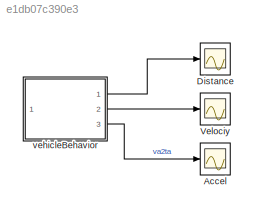
MODEL slx_e1db07c390e3
KIND model
CONFIG AbsTol = auto
CONFIG EnableMultiTasking = off
CONFIG FixedStep = 0.01
CONFIG MaxStep = auto
CONFIG MinStep = auto
CONFIG RelTol = 1e-4
CONFIG SampleTimeConstraint = Unconstrained
CONFIG SolverName = ode4
CONFIG StartTime = 0.0
CONFIG StopTime = 5000
WORKSPACE source: mxarray member
WORKSPACE Bcapacity = 70
WORKSPACE J = 300
WORKSPACE Km = 10
WORKSPACE R = 0.7
WORKSPACE Rint = 1.8
WORKSPACE SOCinit = 0.8
WORKSPACE V0 = 300
WORKSPACE airFrictionCoefficient = 0.2
WORKSPACE gearRatio = 1.5
WORKSPACE m = 800
WORKSPACE motL = 0.2
WORKSPACE motR = 4
WORKSPACE socInit = 0.8
WORKSPACE tireResistance = 5
BLOCK [Scope] Accel
  Floating = off
  NumInputPorts = 1
  Ports = [1]
  ScopeSpecificationString = Simulink.scopes.TimeScopeBlockCfg('CurrentConfiguration', extmgr.ConfigurationSet(extmgr.Configuration('Core','General UI',true),extmgr.Configuration('Core','Source UI',true),extmgr.Configuration('Sources','WiredSimulink',true),extmgr.Configuration('Visuals','Time Domain',true,'SerializedDisplays',{struct('MinYLimReal','-0.04153','MaxYLimReal','0.35254','YLabelReal','','MinYLimMag','0.00000','MaxY...<+1388ch>
BLOCK [Scope] Distance
  Floating = off
  NumInputPorts = 1
  Ports = [1]
  ScopeSpecificationString = Simulink.scopes.TimeScopeBlockCfg('CurrentConfiguration', extmgr.ConfigurationSet(extmgr.Configuration('Core','General UI',true),extmgr.Configuration('Core','Source UI',true),extmgr.Configuration('Sources','WiredSimulink',true,'DataLoggingVariableName','ScopeData1'),extmgr.Configuration('Visuals','Time Domain',true,'SerializedDisplays',{struct('MinYLimReal','-3.39947','MaxYLimReal','30.59522','YLa...<+1444ch>
BLOCK [Scope] Velociy
  Floating = off
  NumInputPorts = 1
  Ports = [1]
  ScopeSpecificationString = Simulink.scopes.TimeScopeBlockCfg('CurrentConfiguration', extmgr.ConfigurationSet(extmgr.Configuration('Core','General UI',true),extmgr.Configuration('Core','Source UI',true),extmgr.Configuration('Sources','WiredSimulink',true,'DataLoggingVariableName','ScopeData4'),extmgr.Configuration('Visuals','Time Domain',true,'SerializedDisplays',{struct('MinYLimReal','-20.37757','MaxYLimReal','183.39812','Y...<+1450ch>
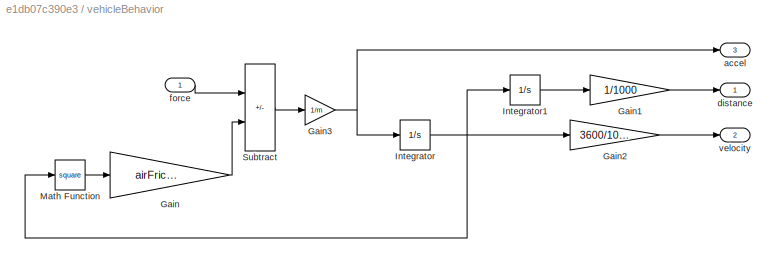
BLOCK [SubSystem] vehicleBehavior
  Ports = [1, 3]
  RequestExecContextInheritance = off
BLOCK [Gain] vehicleBehavior/Gain
  Gain = airFrictionCoefficient
BLOCK [Gain] vehicleBehavior/Gain1
  Gain = 1/1000
BLOCK [Gain] vehicleBehavior/Gain2
  Gain = 3600/1000
BLOCK [Gain] vehicleBehavior/Gain3
  Gain = 1/m
BLOCK [Integrator] vehicleBehavior/Integrator
  Ports = [1, 1]
BLOCK [Integrator] vehicleBehavior/Integrator1
  Ports = [1, 1]
BLOCK [Math] vehicleBehavior/Math Function
  Operator = square
  Ports = [1, 1]
BLOCK [Sum] vehicleBehavior/Subtract
  IconShape = rectangular
  Inputs = +-
  Ports = [2, 1]
BLOCK [Outport] vehicleBehavior/accel
  Port = 3
BLOCK [Outport] vehicleBehavior/distance
BLOCK [Inport] vehicleBehavior/force
BLOCK [Outport] vehicleBehavior/velocity
  Port = 2
LINE vehicleBehavior/Gain1:1 -> vehicleBehavior/distance:1
LINE vehicleBehavior/Gain2:1 -> vehicleBehavior/velocity:1
NET vehicleBehavior/Gain3:1 -> vehicleBehavior/Integrator:1, vehicleBehavior/accel:1
LINE vehicleBehavior/Gain:1 -> vehicleBehavior/Subtract:2
LINE vehicleBehavior/Integrator1:1 -> vehicleBehavior/Gain1:1
NET vehicleBehavior/Integrator:1 -> vehicleBehavior/Gain2:1, vehicleBehavior/Integrator1:1, vehicleBehavior/Math Function:1
LINE vehicleBehavior/Math Function:1 -> vehicleBehavior/Gain:1
LINE vehicleBehavior/Subtract:1 -> vehicleBehavior/Gain3:1
LINE vehicleBehavior/force:1 -> vehicleBehavior/Subtract:1
LINE vehicleBehavior:1 -> Distance:1
LINE vehicleBehavior:2 -> Velociy:1
LINE vehicleBehavior:3 -> Accel:1
note: NET lines group one-source signal fan-out (src -> all destinations, sorted); 1:1 wires keep LINE
